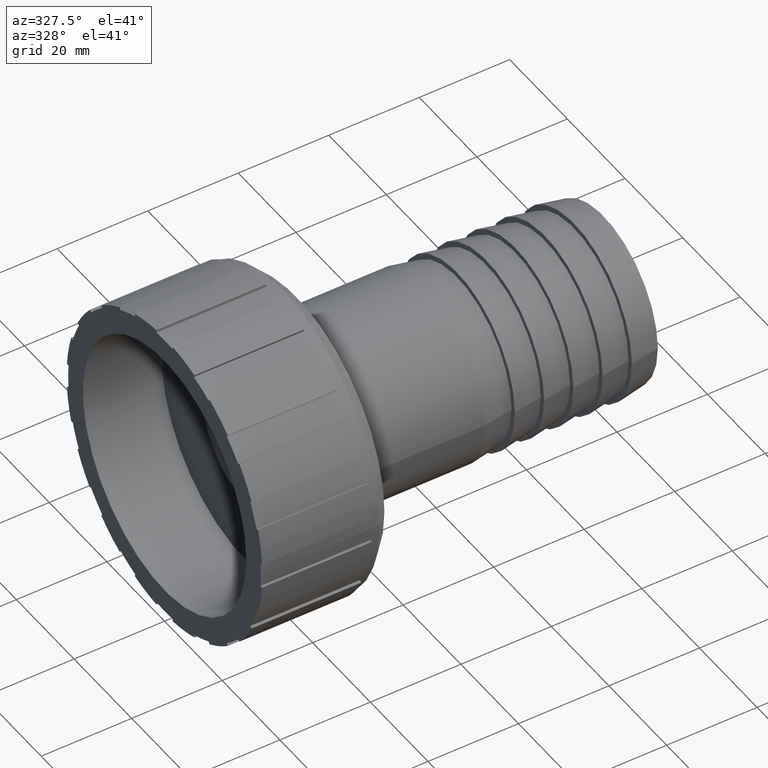
[diagram: clean part render]
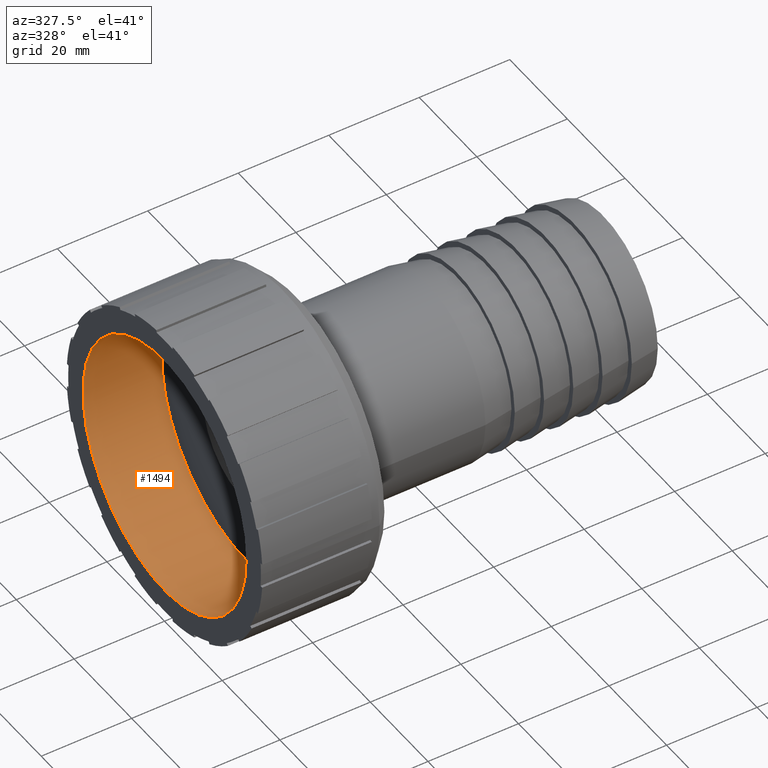
[diagram: same view with one face highlighted and labeled with its STEP entity id]
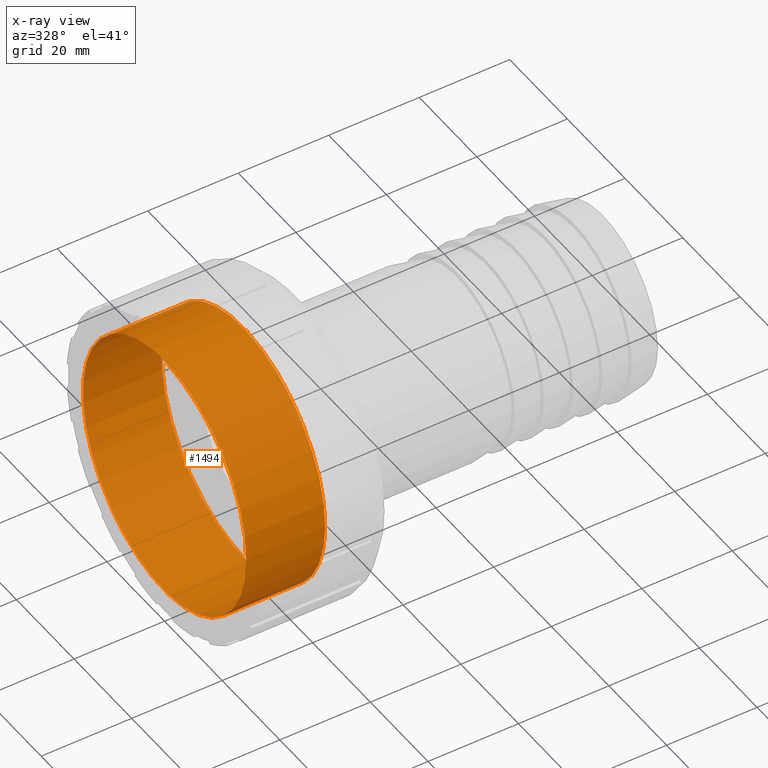
[diagram: x-ray of the same camera — body ghosted, the highlighted face saturated]
A machine part, auxiliary view. The second image highlights one B-rep face of the part: STEP entity #1494.
The next image is the same camera in x-ray: the body ghosted, the highlighted face saturated — about 1% of this face is hidden behind the body in this view.
In plain terms, the highlighted cylindrical surface (bore or boss wall) has radius 28.328 mm, axis along (-1, 0, 0).
Its self-contained STEP definition (entity closure, byte-faithful):
#39=CYLINDRICAL_SURFACE('',#1648,28.328);
#46=FACE_BOUND('',#302,.T.);
#94=CIRCLE('',#1575,28.328);
#130=CIRCLE('',#1649,28.328);
#213=FACE_OUTER_BOUND('',#301,.T.);
#301=EDGE_LOOP('',(#1337));
#302=EDGE_LOOP('',(#1338));
#713=VERTEX_POINT('',#2453);
#721=VERTEX_POINT('',#2541);
#890=EDGE_CURVE('',#713,#713,#94,.T.);
#932=EDGE_CURVE('',#721,#721,#130,.T.);
#1337=ORIENTED_EDGE('',*,*,#890,.T.);
#1338=ORIENTED_EDGE('',*,*,#932,.F.);
#1494=ADVANCED_FACE('',(#213,#46),#39,.F.);
#1575=AXIS2_PLACEMENT_3D('',#2454,#1929,#1930);
#1648=AXIS2_PLACEMENT_3D('',#2540,#2081,#2082);
#1649=AXIS2_PLACEMENT_3D('',#2542,#2083,#2084);
#1929=DIRECTION('center_axis',(-1.,0.,0.));
#1930=DIRECTION('ref_axis',(0.,0.,1.));
#2081=DIRECTION('center_axis',(-1.,0.,0.));
#2082=DIRECTION('ref_axis',(0.,-1.,0.));
#2083=DIRECTION('center_axis',(-1.,0.,0.));
#2084=DIRECTION('ref_axis',(0.,0.,1.));
#2453=CARTESIAN_POINT('',(0.,-28.328,0.));
#2454=CARTESIAN_POINT('Origin',(0.,0.,0.));
#2540=CARTESIAN_POINT('Origin',(8.73,0.,0.));
#2541=CARTESIAN_POINT('',(17.46,-28.328,0.));
#2542=CARTESIAN_POINT('Origin',(17.46,0.,0.));